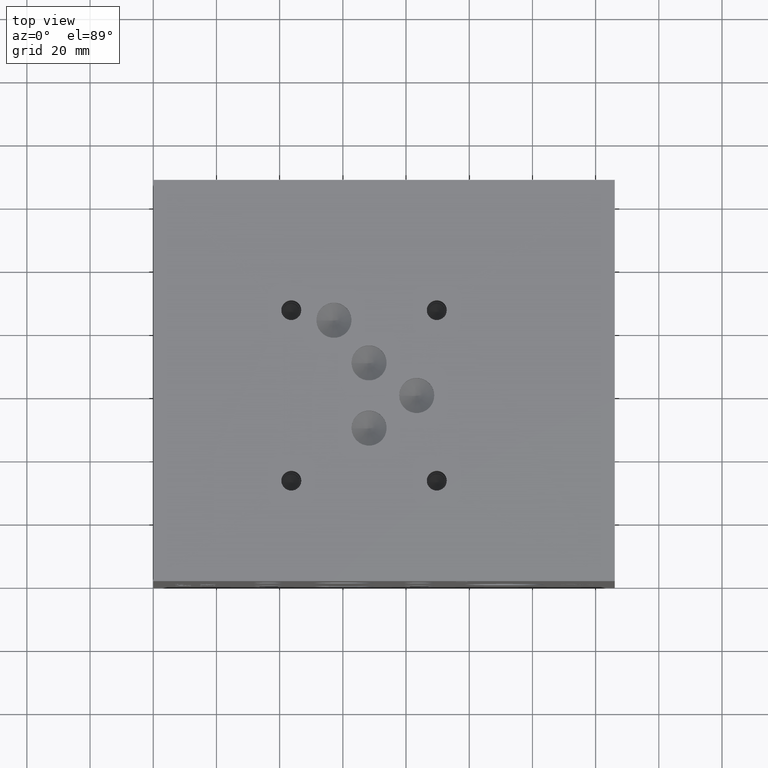
[diagram: clean part render]
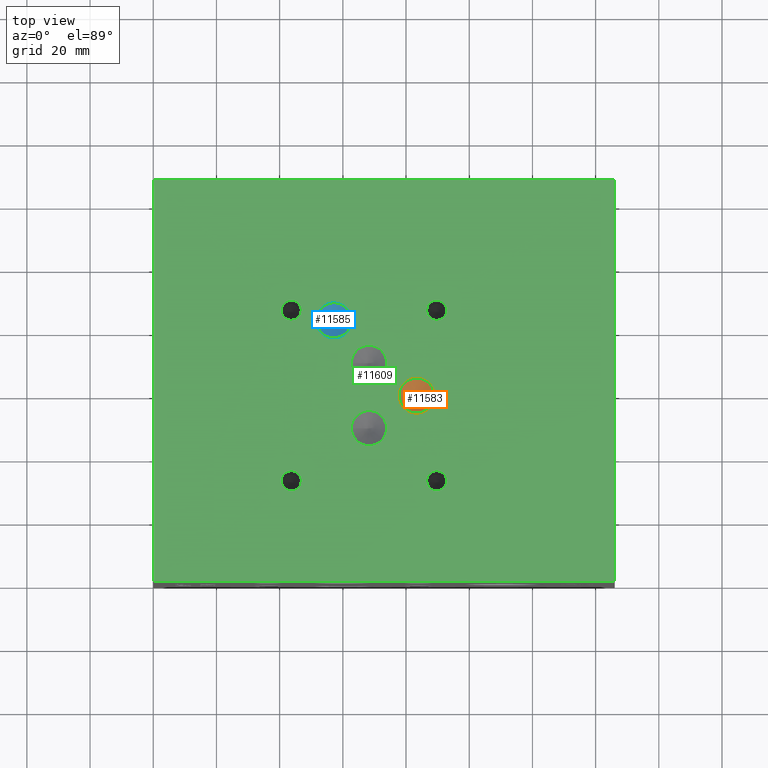
[diagram: same view with three faces highlighted in distinct colors, each labeled with its STEP entity id]
A machine part, top view with three faces highlighted in distinct colors.
Their STEP definitions:

[orange] entity #11583 — the highlighted conical surface has half-angle 60 deg.
#132=CONICAL_SURFACE('',#12317,2.7813,1.0471975511966);
#382=CIRCLE('',#12318,5.5626);
#383=CIRCLE('',#12319,5.5626);
#1459=FACE_OUTER_BOUND('',#2160,.T.);
#2160=EDGE_LOOP('',(#10326,#10327,#10328,#10329));
#3252=LINE('',#19702,#4324);
#4324=VECTOR('',#14827,2.7813);
#5651=VERTEX_POINT('',#19698);
#5652=VERTEX_POINT('',#19699);
#5653=VERTEX_POINT('',#19701);
#7231=EDGE_CURVE('',#5651,#5652,#382,.T.);
#7232=EDGE_CURVE('',#5652,#5653,#3252,.T.);
#7233=EDGE_CURVE('',#5652,#5651,#383,.T.);
#10326=ORIENTED_EDGE('',*,*,#7231,.T.);
#10327=ORIENTED_EDGE('',*,*,#7232,.T.);
#10328=ORIENTED_EDGE('',*,*,#7232,.F.);
#10329=ORIENTED_EDGE('',*,*,#7233,.T.);
#11583=ADVANCED_FACE('',(#1459),#132,.F.);
#12317=AXIS2_PLACEMENT_3D('',#19697,#14823,#14824);
#12318=AXIS2_PLACEMENT_3D('',#19700,#14825,#14826);
#12319=AXIS2_PLACEMENT_3D('',#19703,#14828,#14829);
#14823=DIRECTION('center_axis',(0.,0.,1.));
#14824=DIRECTION('ref_axis',(1.,0.,0.));
#14825=DIRECTION('center_axis',(0.,0.,1.));
#14826=DIRECTION('ref_axis',(1.,0.,0.));
#14827=DIRECTION('',(0.866025403784439,1.06057523872491E-16,-0.5));
#14828=DIRECTION('center_axis',(0.,0.,1.));
#14829=DIRECTION('ref_axis',(1.,0.,0.));
#19697=CARTESIAN_POINT('Origin',(83.3628,58.7375,122.182645696303));
#19698=CARTESIAN_POINT('',(88.9254,58.7375,123.78843));
#19699=CARTESIAN_POINT('',(77.8002,58.7375,123.78843));
#19700=CARTESIAN_POINT('Origin',(83.3628,58.7375,123.78843));
#19701=CARTESIAN_POINT('',(83.3628,58.7375,120.576861392606));
#19702=CARTESIAN_POINT('',(80.5815,58.7375,122.182645696303));
#19703=CARTESIAN_POINT('Origin',(83.3628,58.7375,123.78843));

[blue] entity #11585 — the highlighted conical surface has half-angle 60 deg.
#133=CONICAL_SURFACE('',#12323,2.7813,1.0471975511966);
#386=CIRCLE('',#12324,5.5626);
#387=CIRCLE('',#12325,5.5626);
#1461=FACE_OUTER_BOUND('',#2162,.T.);
#2162=EDGE_LOOP('',(#10336,#10337,#10338,#10339));
#3254=LINE('',#19715,#4326);
#4326=VECTOR('',#14841,2.7813);
#5656=VERTEX_POINT('',#19711);
#5657=VERTEX_POINT('',#19712);
#5658=VERTEX_POINT('',#19714);
#7237=EDGE_CURVE('',#5656,#5657,#386,.T.);
#7238=EDGE_CURVE('',#5657,#5658,#3254,.T.);
#7239=EDGE_CURVE('',#5657,#5656,#387,.T.);
#10336=ORIENTED_EDGE('',*,*,#7237,.T.);
#10337=ORIENTED_EDGE('',*,*,#7238,.T.);
#10338=ORIENTED_EDGE('',*,*,#7238,.F.);
#10339=ORIENTED_EDGE('',*,*,#7239,.T.);
#11585=ADVANCED_FACE('',(#1461),#133,.F.);
#12323=AXIS2_PLACEMENT_3D('',#19710,#14837,#14838);
#12324=AXIS2_PLACEMENT_3D('',#19713,#14839,#14840);
#12325=AXIS2_PLACEMENT_3D('',#19716,#14842,#14843);
#14837=DIRECTION('center_axis',(0.,0.,1.));
#14838=DIRECTION('ref_axis',(1.,0.,0.));
#14839=DIRECTION('center_axis',(0.,0.,1.));
#14840=DIRECTION('ref_axis',(1.,0.,0.));
#14841=DIRECTION('',(0.866025403784439,1.06057523872491E-16,-0.5));
#14842=DIRECTION('center_axis',(0.,0.,1.));
#14843=DIRECTION('ref_axis',(1.,0.,0.));
#19710=CARTESIAN_POINT('Origin',(57.17032,82.55,122.182645696303));
#19711=CARTESIAN_POINT('',(62.73292,82.55,123.78843));
#19712=CARTESIAN_POINT('',(51.60772,82.55,123.78843));
#19713=CARTESIAN_POINT('Origin',(57.17032,82.55,123.78843));
#19714=CARTESIAN_POINT('',(57.17032,82.55,120.576861392606));
#19715=CARTESIAN_POINT('',(54.38902,82.55,122.182645696303));
#19716=CARTESIAN_POINT('Origin',(57.17032,82.55,123.78843));

[green] entity #11609 — the highlighted planar face has unit normal (0, 0, 1).
#380=CIRCLE('',#12315,5.5626);
#381=CIRCLE('',#12316,5.5626);
#384=CIRCLE('',#12321,5.5626);
#385=CIRCLE('',#12322,5.5626);
#388=CIRCLE('',#12327,5.5626);
#389=CIRCLE('',#12328,5.5626);
#392=CIRCLE('',#12333,5.5626);
#393=CIRCLE('',#12334,5.5626);
#399=CIRCLE('',#12343,3.175);
#400=CIRCLE('',#12344,3.175);
#406=CIRCLE('',#12354,3.175);
#407=CIRCLE('',#12355,3.175);
#413=CIRCLE('',#12365,3.175);
#414=CIRCLE('',#12366,3.175);
#420=CIRCLE('',#12376,3.175);
#421=CIRCLE('',#12377,3.175);
#531=FACE_BOUND('',#2191,.T.);
#532=FACE_BOUND('',#2192,.T.);
#533=FACE_BOUND('',#2193,.T.);
#534=FACE_BOUND('',#2194,.T.);
#535=FACE_BOUND('',#2195,.T.);
#536=FACE_BOUND('',#2196,.T.);
#537=FACE_BOUND('',#2197,.T.);
#538=FACE_BOUND('',#2198,.T.);
#889=PLANE('',#12383);
#1485=FACE_OUTER_BOUND('',#2190,.T.);
#2190=EDGE_LOOP('',(#10453,#10454,#10455,#10456));
#2191=EDGE_LOOP('',(#10457,#10458));
#2192=EDGE_LOOP('',(#10459,#10460));
#2193=EDGE_LOOP('',(#10461,#10462));
#2194=EDGE_LOOP('',(#10463,#10464));
#2195=EDGE_LOOP('',(#10465,#10466));
#2196=EDGE_LOOP('',(#10467,#10468));
#2197=EDGE_LOOP('',(#10469,#10470));
#2198=EDGE_LOOP('',(#10471,#10472));
#2503=LINE('',#16738,#3575);
#2996=LINE('',#18326,#4068);
#3078=LINE('',#18678,#4150);
#3271=LINE('',#19827,#4343);
#3575=VECTOR('',#12868,10.);
#4068=VECTOR('',#13743,10.);
#4150=VECTOR('',#13929,10.);
#4343=VECTOR('',#14970,10.);
#4874=VERTEX_POINT('',#16735);
#4875=VERTEX_POINT('',#16737);
#5275=VERTEX_POINT('',#18324);
#5365=VERTEX_POINT('',#18677);
#5649=VERTEX_POINT('',#19692);
#5650=VERTEX_POINT('',#19693);
#5654=VERTEX_POINT('',#19705);
#5655=VERTEX_POINT('',#19706);
#5659=VERTEX_POINT('',#19718);
#5660=VERTEX_POINT('',#19719);
#5664=VERTEX_POINT('',#19731);
#5665=VERTEX_POINT('',#19732);
#5672=VERTEX_POINT('',#19751);
#5673=VERTEX_POINT('',#19752);
#5680=VERTEX_POINT('',#19773);
#5681=VERTEX_POINT('',#19774);
#5688=VERTEX_POINT('',#19795);
#5689=VERTEX_POINT('',#19796);
#5696=VERTEX_POINT('',#19817);
#5697=VERTEX_POINT('',#19818);
#6135=EDGE_CURVE('',#4875,#4874,#2503,.T.);
#6716=EDGE_CURVE('',#4874,#5275,#2996,.T.);
#6838=EDGE_CURVE('',#5365,#4875,#3078,.T.);
#7228=EDGE_CURVE('',#5649,#5650,#380,.T.);
#7229=EDGE_CURVE('',#5650,#5649,#381,.T.);
#7234=EDGE_CURVE('',#5654,#5655,#384,.T.);
#7235=EDGE_CURVE('',#5655,#5654,#385,.T.);
#7240=EDGE_CURVE('',#5659,#5660,#388,.T.);
#7241=EDGE_CURVE('',#5660,#5659,#389,.T.);
#7246=EDGE_CURVE('',#5664,#5665,#392,.T.);
#7247=EDGE_CURVE('',#5665,#5664,#393,.T.);
#7255=EDGE_CURVE('',#5672,#5673,#399,.T.);
#7256=EDGE_CURVE('',#5673,#5672,#400,.T.);
#7265=EDGE_CURVE('',#5680,#5681,#406,.T.);
#7266=EDGE_CURVE('',#5681,#5680,#407,.T.);
#7275=EDGE_CURVE('',#5688,#5689,#413,.T.);
#7276=EDGE_CURVE('',#5689,#5688,#414,.T.);
#7285=EDGE_CURVE('',#5696,#5697,#420,.T.);
#7286=EDGE_CURVE('',#5697,#5696,#421,.T.);
#7290=EDGE_CURVE('',#5275,#5365,#3271,.T.);
#10453=ORIENTED_EDGE('',*,*,#6135,.T.);
#10454=ORIENTED_EDGE('',*,*,#6716,.T.);
#10455=ORIENTED_EDGE('',*,*,#7290,.T.);
#10456=ORIENTED_EDGE('',*,*,#6838,.T.);
#10457=ORIENTED_EDGE('',*,*,#7228,.T.);
#10458=ORIENTED_EDGE('',*,*,#7229,.T.);
#10459=ORIENTED_EDGE('',*,*,#7234,.T.);
#10460=ORIENTED_EDGE('',*,*,#7235,.T.);
#10461=ORIENTED_EDGE('',*,*,#7240,.T.);
#10462=ORIENTED_EDGE('',*,*,#7241,.T.);
#10463=ORIENTED_EDGE('',*,*,#7246,.T.);
#10464=ORIENTED_EDGE('',*,*,#7247,.T.);
#10465=ORIENTED_EDGE('',*,*,#7255,.T.);
#10466=ORIENTED_EDGE('',*,*,#7256,.T.);
#10467=ORIENTED_EDGE('',*,*,#7265,.T.);
#10468=ORIENTED_EDGE('',*,*,#7266,.T.);
#10469=ORIENTED_EDGE('',*,*,#7275,.T.);
#10470=ORIENTED_EDGE('',*,*,#7276,.T.);
#10471=ORIENTED_EDGE('',*,*,#7285,.T.);
#10472=ORIENTED_EDGE('',*,*,#7286,.T.);
#11609=ADVANCED_FACE('',(#1485,#531,#532,#533,#534,#535,#536,#537,#538),
#889,.T.);
#12315=AXIS2_PLACEMENT_3D('',#19694,#14818,#14819);
#12316=AXIS2_PLACEMENT_3D('',#19695,#14820,#14821);
#12321=AXIS2_PLACEMENT_3D('',#19707,#14832,#14833);
#12322=AXIS2_PLACEMENT_3D('',#19708,#14834,#14835);
#12327=AXIS2_PLACEMENT_3D('',#19720,#14846,#14847);
#12328=AXIS2_PLACEMENT_3D('',#19721,#14848,#14849);
#12333=AXIS2_PLACEMENT_3D('',#19733,#14860,#14861);
#12334=AXIS2_PLACEMENT_3D('',#19734,#14862,#14863);
#12343=AXIS2_PLACEMENT_3D('',#19753,#14882,#14883);
#12344=AXIS2_PLACEMENT_3D('',#19754,#14884,#14885);
#12354=AXIS2_PLACEMENT_3D('',#19775,#14907,#14908);
#12355=AXIS2_PLACEMENT_3D('',#19776,#14909,#14910);
#12365=AXIS2_PLACEMENT_3D('',#19797,#14932,#14933);
#12366=AXIS2_PLACEMENT_3D('',#19798,#14934,#14935);
#12376=AXIS2_PLACEMENT_3D('',#19819,#14957,#14958);
#12377=AXIS2_PLACEMENT_3D('',#19820,#14959,#14960);
#12383=AXIS2_PLACEMENT_3D('',#19830,#14975,#14976);
#12868=DIRECTION('',(1.,0.,0.));
#13743=DIRECTION('',(0.,1.,0.));
#13929=DIRECTION('',(0.,-1.,0.));
#14818=DIRECTION('center_axis',(0.,0.,-1.));
#14819=DIRECTION('ref_axis',(1.,0.,0.));
#14820=DIRECTION('center_axis',(0.,0.,-1.));
#14821=DIRECTION('ref_axis',(1.,0.,0.));
#14832=DIRECTION('center_axis',(0.,0.,-1.));
#14833=DIRECTION('ref_axis',(1.,0.,0.));
#14834=DIRECTION('center_axis',(0.,0.,-1.));
#14835=DIRECTION('ref_axis',(1.,0.,0.));
#14846=DIRECTION('center_axis',(0.,0.,-1.));
#14847=DIRECTION('ref_axis',(1.,0.,0.));
#14848=DIRECTION('center_axis',(0.,0.,-1.));
#14849=DIRECTION('ref_axis',(1.,0.,0.));
#14860=DIRECTION('center_axis',(0.,0.,-1.));
#14861=DIRECTION('ref_axis',(1.,0.,0.));
#14862=DIRECTION('center_axis',(0.,0.,-1.));
#14863=DIRECTION('ref_axis',(1.,0.,0.));
#14882=DIRECTION('center_axis',(0.,0.,-1.));
#14883=DIRECTION('ref_axis',(1.,0.,0.));
#14884=DIRECTION('center_axis',(0.,0.,-1.));
#14885=DIRECTION('ref_axis',(1.,0.,0.));
#14907=DIRECTION('center_axis',(0.,0.,-1.));
#14908=DIRECTION('ref_axis',(1.,0.,0.));
#14909=DIRECTION('center_axis',(0.,0.,-1.));
#14910=DIRECTION('ref_axis',(1.,0.,0.));
#14932=DIRECTION('center_axis',(0.,0.,-1.));
#14933=DIRECTION('ref_axis',(1.,0.,0.));
#14934=DIRECTION('center_axis',(0.,0.,-1.));
#14935=DIRECTION('ref_axis',(1.,0.,0.));
#14957=DIRECTION('center_axis',(0.,0.,-1.));
#14958=DIRECTION('ref_axis',(1.,0.,0.));
#14959=DIRECTION('center_axis',(0.,0.,-1.));
#14960=DIRECTION('ref_axis',(1.,0.,0.));
#14970=DIRECTION('',(-1.,0.,0.));
#14975=DIRECTION('center_axis',(0.,0.,1.));
#14976=DIRECTION('ref_axis',(1.,0.,0.));
#16735=CARTESIAN_POINT('',(146.05,0.,127.));
#16737=CARTESIAN_POINT('',(0.,0.,127.));
#16738=CARTESIAN_POINT('',(0.,0.,127.));
#18324=CARTESIAN_POINT('',(146.05,127.,127.));
#18326=CARTESIAN_POINT('',(146.05,0.,127.));
#18677=CARTESIAN_POINT('',(0.,127.,127.));
#18678=CARTESIAN_POINT('',(0.,127.,127.));
#19692=CARTESIAN_POINT('',(73.8378,69.05498,127.));
#19693=CARTESIAN_POINT('',(62.7126,69.05498,127.));
#19694=CARTESIAN_POINT('Origin',(68.2752,69.05498,127.));
#19695=CARTESIAN_POINT('Origin',(68.2752,69.05498,127.));
#19705=CARTESIAN_POINT('',(88.9254,58.7375,127.));
#19706=CARTESIAN_POINT('',(77.8002,58.7375,127.));
#19707=CARTESIAN_POINT('Origin',(83.3628,58.7375,127.));
#19708=CARTESIAN_POINT('Origin',(83.3628,58.7375,127.));
#19718=CARTESIAN_POINT('',(62.73292,82.55,127.));
#19719=CARTESIAN_POINT('',(51.60772,82.55,127.));
#19720=CARTESIAN_POINT('Origin',(57.17032,82.55,127.));
#19721=CARTESIAN_POINT('Origin',(57.17032,82.55,127.));
#19731=CARTESIAN_POINT('',(73.84288,48.42002,127.));
#19732=CARTESIAN_POINT('',(62.71768,48.42002,127.));
#19733=CARTESIAN_POINT('Origin',(68.28028,48.42002,127.));
#19734=CARTESIAN_POINT('Origin',(68.28028,48.42002,127.));
#19751=CARTESIAN_POINT('',(92.8878,31.7627,127.));
#19752=CARTESIAN_POINT('',(86.5378,31.7627,127.));
#19753=CARTESIAN_POINT('Origin',(89.7128,31.7627,127.));
#19754=CARTESIAN_POINT('Origin',(89.7128,31.7627,127.));
#19773=CARTESIAN_POINT('',(46.8376,85.7504,127.));
#19774=CARTESIAN_POINT('',(40.4876,85.7504,127.));
#19775=CARTESIAN_POINT('Origin',(43.6626,85.7504,127.));
#19776=CARTESIAN_POINT('Origin',(43.6626,85.7504,127.));
#19795=CARTESIAN_POINT('',(92.8878,85.7377,127.));
#19796=CARTESIAN_POINT('',(86.5378,85.7377,127.));
#19797=CARTESIAN_POINT('Origin',(89.7128,85.7377,127.));
#19798=CARTESIAN_POINT('Origin',(89.7128,85.7377,127.));
#19817=CARTESIAN_POINT('',(46.8503,31.7627,127.));
#19818=CARTESIAN_POINT('',(40.5003,31.7627,127.));
#19819=CARTESIAN_POINT('Origin',(43.6753,31.7627,127.));
#19820=CARTESIAN_POINT('Origin',(43.6753,31.7627,127.));
#19827=CARTESIAN_POINT('',(146.05,127.,127.));
#19830=CARTESIAN_POINT('Origin',(73.025,63.5,127.));